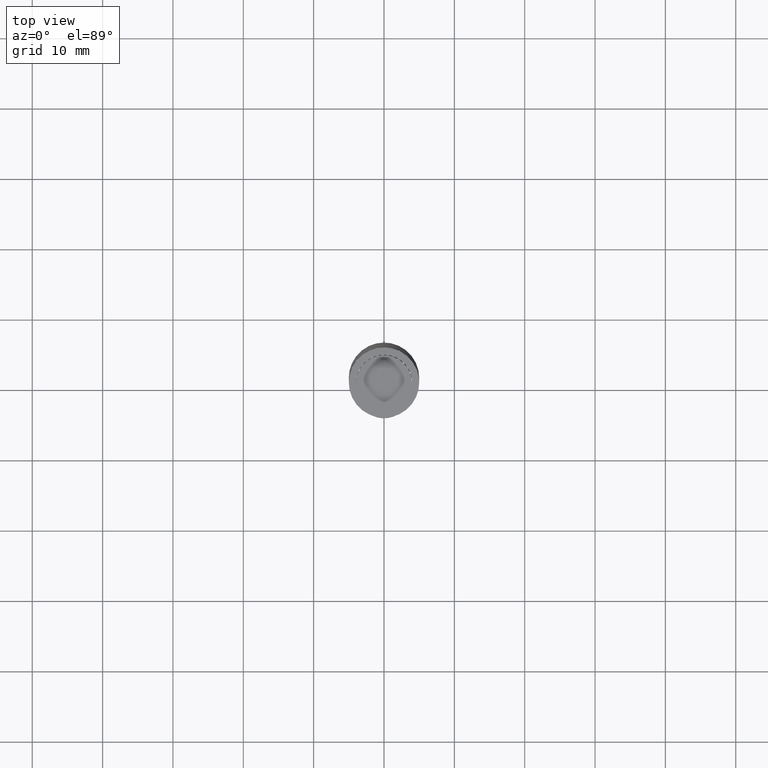
[diagram: clean part render]
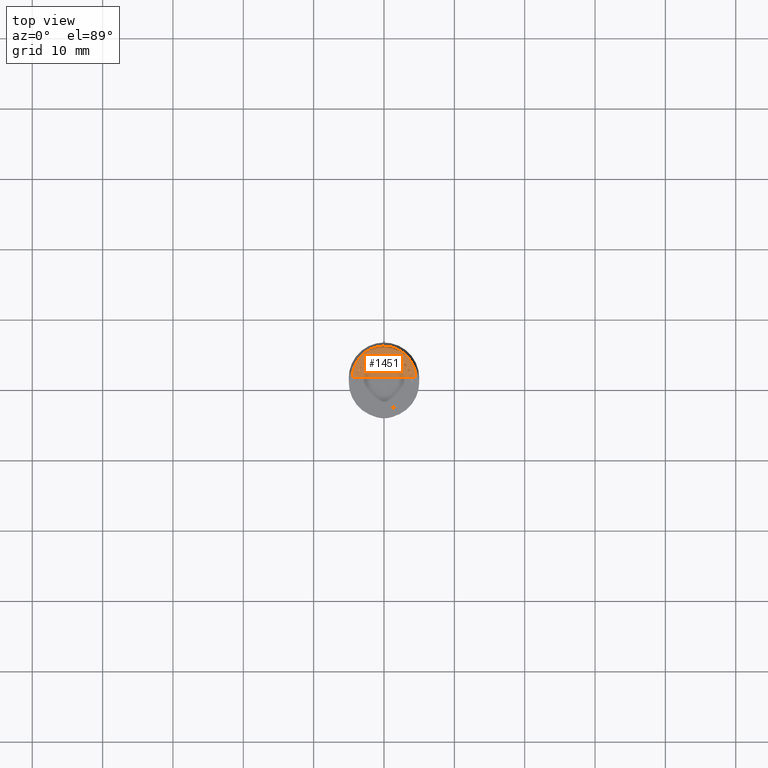
[diagram: same view with one face highlighted and labeled with its STEP entity id]
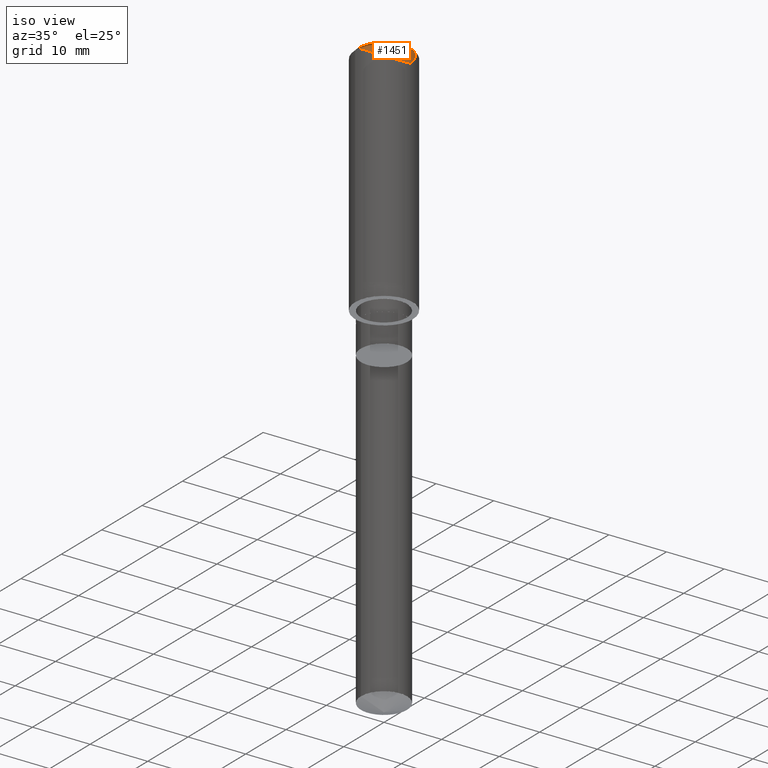
[diagram: same view with one face highlighted and labeled with its STEP entity id]
A machine part, top view. The second image highlights one B-rep face of the part: STEP entity #1451.
A second angle (iso view) of the same face is appended — the face is thin or edge-on in the first view.
In plain terms, the highlighted face is a freeform B-spline surface patch.
Its self-contained STEP definition (entity closure, byte-faithful):
#1186=CARTESIAN_POINT('',(4.5,0.0,40.0));
#1187=CARTESIAN_POINT('',(4.5,4.5,40.0));
#1188=CARTESIAN_POINT('',(0.0,4.5,40.0));
#1189=CARTESIAN_POINT('',(-4.5,4.5,40.0));
#1190=CARTESIAN_POINT('',(-4.5,0.0,40.0));
#1191=CARTESIAN_POINT('',(0.0,0.0,40.0));
#1436=(
BOUNDED_SURFACE()
B_SPLINE_SURFACE(1,2,(
(#1186,#1187,#1188,#1189,#1190),
(#1191,#1191,#1191,#1191,#1191)
), .UNSPECIFIED.,.F.,.F.,.F.)
B_SPLINE_SURFACE_WITH_KNOTS((2,2),(3,2,3),(
0.0,1.0),(
0.0,0.5,1.0), .UNSPECIFIED.)
GEOMETRIC_REPRESENTATION_ITEM()
RATIONAL_B_SPLINE_SURFACE(((1.0,0.707106781187,1.0,0.707106781187,1.0),
(1.0,0.707106781187,1.0,0.707106781187,1.0)
))
REPRESENTATION_ITEM('')
SURFACE()
);
#1437=(
BOUNDED_CURVE()
B_SPLINE_CURVE(2,(#1190,#1189,#1188,#1187,#1186),.UNSPECIFIED.,.F.,.F.)
B_SPLINE_CURVE_WITH_KNOTS((3,2,3),
(0.0,0.5,1.0),.UNSPECIFIED.)
CURVE()
GEOMETRIC_REPRESENTATION_ITEM()
RATIONAL_B_SPLINE_CURVE((1.0,0.707106781187,1.0,0.707106781187,1.0))
REPRESENTATION_ITEM('')
);
#1438=(
BOUNDED_CURVE()
B_SPLINE_CURVE(1,(#1186,#1191),.UNSPECIFIED.,.F.,.F.)
B_SPLINE_CURVE_WITH_KNOTS((2,2),
(0.0,1.0),.UNSPECIFIED.)
CURVE()
GEOMETRIC_REPRESENTATION_ITEM()
RATIONAL_B_SPLINE_CURVE((1.0,1.0))
REPRESENTATION_ITEM('')
);
#1439=(
BOUNDED_CURVE()
B_SPLINE_CURVE(1,(#1191,#1190),.UNSPECIFIED.,.F.,.F.)
B_SPLINE_CURVE_WITH_KNOTS((2,2),
(0.0,1.0),.UNSPECIFIED.)
CURVE()
GEOMETRIC_REPRESENTATION_ITEM()
RATIONAL_B_SPLINE_CURVE((1.0,1.0))
REPRESENTATION_ITEM('')
);
#1440=VERTEX_POINT('',#1186);
#1441=VERTEX_POINT('',#1190);
#1442=VERTEX_POINT('',#1191);
#1443=EDGE_CURVE('',#1441,#1440,#1437,.T.);
#1444=EDGE_CURVE('',#1440,#1442,#1438,.T.);
#1445=EDGE_CURVE('',#1442,#1441,#1439,.T.);
#1446=ORIENTED_EDGE('',*,*,#1443,.T.);
#1447=ORIENTED_EDGE('',*,*,#1444,.T.);
#1448=ORIENTED_EDGE('',*,*,#1445,.T.);
#1449=EDGE_LOOP('',(#1446,#1447,#1448));
#1450=FACE_OUTER_BOUND('',#1449,.T.);
#1451=ADVANCED_FACE('',(#1450),#1436,.T.);